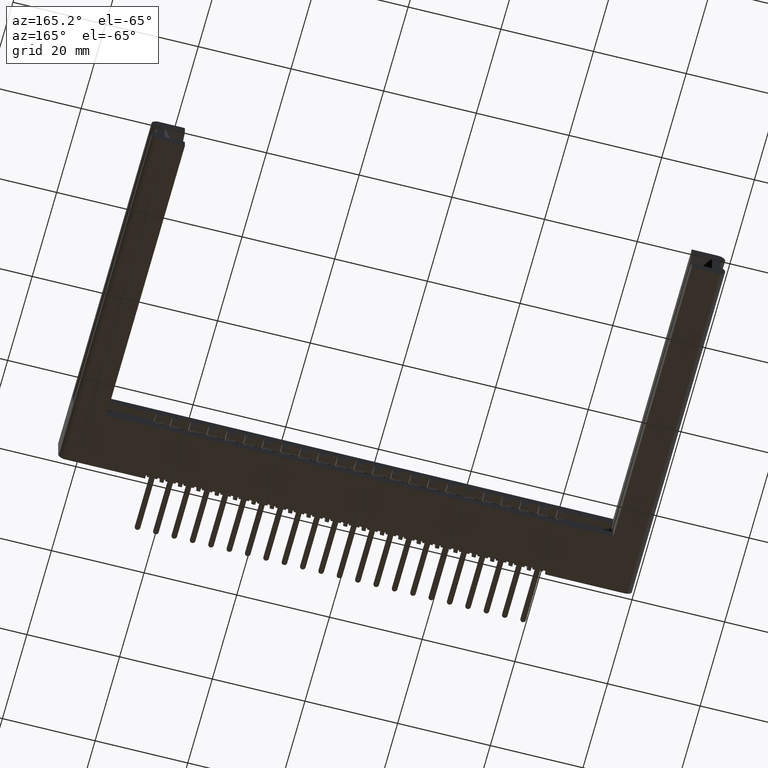
[diagram: clean part render]
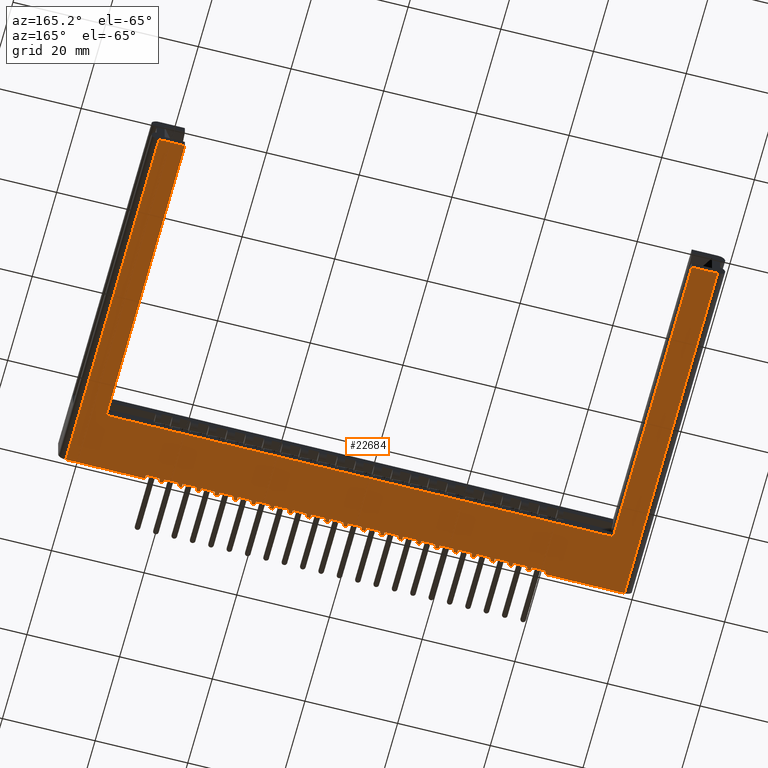
[diagram: same view with one face highlighted and labeled with its STEP entity id]
A machine part, auxiliary view. The second image highlights one B-rep face of the part: STEP entity #22684.
In plain terms, the highlighted planar face has unit normal (0, 0, 1).
Its self-contained STEP definition (entity closure, byte-faithful):
#75 = CARTESIAN_POINT ( 'NONE',  ( 2.420999999999999800, 1.506315562951245400E-017, -0.1715000000000000100 ) ) ;
#90 = CARTESIAN_POINT ( 'NONE',  ( 0.8610000000000001000, 1.506315562951245400E-017, -0.1715000000000000100 ) ) ;
#114 = CARTESIAN_POINT ( 'NONE',  ( 1.329000000000000000, 1.506315562951245400E-017, -0.1715000000000000100 ) ) ;
#148 = CARTESIAN_POINT ( 'NONE',  ( 1.361999999999999900, 0.0000000000000000000, -0.1715000000000000100 ) ) ;
#173 = LINE ( 'NONE', #12206, #19718 ) ;
#185 = EDGE_CURVE ( 'NONE', #13595, #21166, #2359, .T. ) ;
#218 = VECTOR ( 'NONE', #6679, 39.37007874015748100 ) ;
#224 = LINE ( 'NONE', #13889, #9632 ) ;
#240 = VECTOR ( 'NONE', #3568, 39.37007874015748100 ) ;
#258 = VERTEX_POINT ( 'NONE', #17348 ) ;
#348 = ORIENTED_EDGE ( 'NONE', *, *, #14944, .F. ) ;
#366 = VECTOR ( 'NONE', #16451, 39.37007874015748100 ) ;
#379 = LINE ( 'NONE', #18924, #14631 ) ;
#382 = ORIENTED_EDGE ( 'NONE', *, *, #22667, .F. ) ;
#405 = EDGE_CURVE ( 'NONE', #1496, #21568, #21520, .T. ) ;
#447 = DIRECTION ( 'NONE',  ( 1.000000000000000000, 0.0000000000000000000, 0.0000000000000000000 ) ) ;
#466 = DIRECTION ( 'NONE',  ( -1.000000000000000000, 0.0000000000000000000, 0.0000000000000000000 ) ) ;
#467 = VERTEX_POINT ( 'NONE', #19008 ) ;
#479 = CARTESIAN_POINT ( 'NONE',  ( 1.017000000000000100, 1.506315562951245400E-017, -0.1715000000000000100 ) ) ;
#533 = VERTEX_POINT ( 'NONE', #21466 ) ;
#549 = VECTOR ( 'NONE', #10288, 39.37007874015748100 ) ;
#554 = VERTEX_POINT ( 'NONE', #5812 ) ;
#566 = CARTESIAN_POINT ( 'NONE',  ( 3.824999999999999700, 0.03100000000000001700, -0.1715000000000000100 ) ) ;
#568 = EDGE_CURVE ( 'NONE', #6272, #5739, #13407, .T. ) ;
#585 = EDGE_CURVE ( 'NONE', #6930, #6272, #12846, .T. ) ;
#644 = EDGE_CURVE ( 'NONE', #13031, #1748, #1759, .T. ) ;
#722 = CARTESIAN_POINT ( 'NONE',  ( 4.811000000000000800, 0.0000000000000000000, -0.1715000000000000100 ) ) ;
#742 = CARTESIAN_POINT ( 'NONE',  ( 3.857999999999999700, 0.0000000000000000000, -0.1715000000000000100 ) ) ;
#756 = LINE ( 'NONE', #9249, #10166 ) ;
#805 = VECTOR ( 'NONE', #14106, 39.37007874015748100 ) ;
#853 = CARTESIAN_POINT ( 'NONE',  ( 3.980999999999999400, 1.506315562951245400E-017, -0.1715000000000000100 ) ) ;
#883 = EDGE_CURVE ( 'NONE', #20610, #3524, #1441, .T. ) ;
#919 = LINE ( 'NONE', #566, #5409 ) ;
#922 = DIRECTION ( 'NONE',  ( 1.000000000000000000, 0.0000000000000000000, 0.0000000000000000000 ) ) ;
#998 = DIRECTION ( 'NONE',  ( 0.0000000000000000000, 1.000000000000000000, 0.0000000000000000000 ) ) ;
#1061 = DIRECTION ( 'NONE',  ( -0.0000000000000000000, -1.000000000000000000, -0.0000000000000000000 ) ) ;
#1091 = VERTEX_POINT ( 'NONE', #13418 ) ;
#1106 = LINE ( 'NONE', #7829, #15870 ) ;
#1109 = EDGE_CURVE ( 'NONE', #6634, #18744, #20079, .T. ) ;
#1153 = CARTESIAN_POINT ( 'NONE',  ( 3.201000000000000100, 1.506315562951245400E-017, -0.1715000000000000100 ) ) ;
#1168 = VERTEX_POINT ( 'NONE', #10038 ) ;
#1178 = EDGE_CURVE ( 'NONE', #2307, #19030, #4439, .T. ) ;
#1189 = DIRECTION ( 'NONE',  ( 0.0000000000000000000, 1.000000000000000000, 0.0000000000000000000 ) ) ;
#1208 = ORIENTED_EDGE ( 'NONE', *, *, #22015, .T. ) ;
#1219 = VERTEX_POINT ( 'NONE', #8043 ) ;
#1276 = DIRECTION ( 'NONE',  ( -1.000000000000000000, -1.388134143122084800E-016, 0.0000000000000000000 ) ) ;
#1312 = ORIENTED_EDGE ( 'NONE', *, *, #22666, .F. ) ;
#1359 = CARTESIAN_POINT ( 'NONE',  ( 2.888999999999999800, 1.506315562951245400E-017, -0.1715000000000000100 ) ) ;
#1386 = EDGE_CURVE ( 'NONE', #10122, #3804, #3515, .T. ) ;
#1397 = ORIENTED_EDGE ( 'NONE', *, *, #20205, .T. ) ;
#1423 = ORIENTED_EDGE ( 'NONE', *, *, #15652, .T. ) ;
#1439 = CARTESIAN_POINT ( 'NONE',  ( 3.512999999999999900, 1.506315562951245400E-017, -0.1715000000000000100 ) ) ;
#1441 = LINE ( 'NONE', #21601, #10839 ) ;
#1460 = VECTOR ( 'NONE', #3587, 39.37007874015748100 ) ;
#1496 = VERTEX_POINT ( 'NONE', #19951 ) ;
#1533 = VERTEX_POINT ( 'NONE', #19360 ) ;
#1543 = DIRECTION ( 'NONE',  ( -1.000000000000000000, -1.388134143122084800E-016, 0.0000000000000000000 ) ) ;
#1572 = DIRECTION ( 'NONE',  ( 1.000000000000000000, 0.0000000000000000000, 0.0000000000000000000 ) ) ;
#1626 = LINE ( 'NONE', #7468, #11012 ) ;
#1691 = DIRECTION ( 'NONE',  ( 1.000000000000000000, 0.0000000000000000000, 0.0000000000000000000 ) ) ;
#1714 = ORIENTED_EDGE ( 'NONE', *, *, #15333, .F. ) ;
#1719 = ORIENTED_EDGE ( 'NONE', *, *, #17697, .T. ) ;
#1748 = VERTEX_POINT ( 'NONE', #14533 ) ;
#1754 = DIRECTION ( 'NONE',  ( -0.0000000000000000000, -1.000000000000000000, -0.0000000000000000000 ) ) ;
#1759 = LINE ( 'NONE', #20840, #15926 ) ;
#1769 = EDGE_CURVE ( 'NONE', #4725, #17536, #9638, .T. ) ;
#1837 = VECTOR ( 'NONE', #21437, 39.37007874015748100 ) ;
#1844 = VECTOR ( 'NONE', #13255, 39.37007874015748100 ) ;
#1851 = LINE ( 'NONE', #15543, #16019 ) ;
#1880 = LINE ( 'NONE', #15320, #20220 ) ;
#1893 = EDGE_CURVE ( 'NONE', #19401, #1168, #16433, .T. ) ;
#1927 = CARTESIAN_POINT ( 'NONE',  ( 1.986000000000000000, 0.0000000000000000000, -0.1715000000000000100 ) ) ;
#1954 = VERTEX_POINT ( 'NONE', #11144 ) ;
#2026 = DIRECTION ( 'NONE',  ( -0.0000000000000000000, -1.000000000000000000, -0.0000000000000000000 ) ) ;
#2110 = DIRECTION ( 'NONE',  ( -0.0000000000000000000, -1.000000000000000000, -0.0000000000000000000 ) ) ;
#2183 = ORIENTED_EDGE ( 'NONE', *, *, #2613, .T. ) ;
#2205 = LINE ( 'NONE', #4249, #16370 ) ;
#2222 = CARTESIAN_POINT ( 'NONE',  ( 1.173000000000000000, 0.03100000000000001700, -0.1715000000000000100 ) ) ;
#2260 = ORIENTED_EDGE ( 'NONE', *, *, #7127, .F. ) ;
#2262 = VERTEX_POINT ( 'NONE', #5404 ) ;
#2307 = VERTEX_POINT ( 'NONE', #4791 ) ;
#2343 = CARTESIAN_POINT ( 'NONE',  ( 3.824999999999999700, 0.03100000000000001700, -0.1715000000000000100 ) ) ;
#2359 = LINE ( 'NONE', #10364, #16521 ) ;
#2414 = DIRECTION ( 'NONE',  ( 0.0000000000000000000, 1.000000000000000000, 0.0000000000000000000 ) ) ;
#2448 = CARTESIAN_POINT ( 'NONE',  ( 2.420999999999999800, 0.03100000000000001700, -0.1715000000000000100 ) ) ;
#2449 = LINE ( 'NONE', #11499, #16028 ) ;
#2497 = CARTESIAN_POINT ( 'NONE',  ( 0.0000000000000000000, 0.0000000000000000000, -0.1715000000000000100 ) ) ;
#2560 = DIRECTION ( 'NONE',  ( -0.0000000000000000000, -1.000000000000000000, -0.0000000000000000000 ) ) ;
#2564 = VERTEX_POINT ( 'NONE', #15029 ) ;
#2573 = CARTESIAN_POINT ( 'NONE',  ( 2.922000000000000200, 0.0000000000000000000, -0.1715000000000000100 ) ) ;
#2613 = EDGE_CURVE ( 'NONE', #17896, #13290, #756, .T. ) ;
#2646 = VERTEX_POINT ( 'NONE', #5524 ) ;
#2655 = LINE ( 'NONE', #22683, #7110 ) ;
#2685 = LINE ( 'NONE', #12886, #12039 ) ;
#2700 = CARTESIAN_POINT ( 'NONE',  ( 3.702000000000000000, 0.03100000000000000000, -0.1715000000000000100 ) ) ;
#2701 = EDGE_CURVE ( 'NONE', #14785, #19603, #3434, .T. ) ;
#2703 = LINE ( 'NONE', #2448, #15159 ) ;
#2730 = CARTESIAN_POINT ( 'NONE',  ( 1.640999999999999800, 1.506315562951245400E-017, -0.1715000000000000100 ) ) ;
#2787 = CARTESIAN_POINT ( 'NONE',  ( 1.953000000000000100, 1.506315562951245400E-017, -0.1715000000000000100 ) ) ;
#2791 = CARTESIAN_POINT ( 'NONE',  ( 1.640999999999999800, 0.03100000000000001700, -0.1715000000000000100 ) ) ;
#2917 = DIRECTION ( 'NONE',  ( -1.000000000000000000, -1.388134143122084800E-016, 0.0000000000000000000 ) ) ;
#2940 = ORIENTED_EDGE ( 'NONE', *, *, #185, .T. ) ;
#2944 = VECTOR ( 'NONE', #23423, 39.37007874015748100 ) ;
#3029 = VECTOR ( 'NONE', #22809, 39.37007874015748100 ) ;
#3047 = CARTESIAN_POINT ( 'NONE',  ( 1.953000000000000100, 1.506315562951245400E-017, -0.1715000000000000100 ) ) ;
#3103 = DIRECTION ( 'NONE',  ( -0.0000000000000000000, -1.000000000000000000, -0.0000000000000000000 ) ) ;
#3135 = ORIENTED_EDGE ( 'NONE', *, *, #1178, .F. ) ;
#3187 = VERTEX_POINT ( 'NONE', #9489 ) ;
#3199 = ORIENTED_EDGE ( 'NONE', *, *, #13779, .T. ) ;
#3214 = CARTESIAN_POINT ( 'NONE',  ( 3.512999999999999900, 1.506315562951245400E-017, -0.1715000000000000100 ) ) ;
#3227 = VERTEX_POINT ( 'NONE', #8530 ) ;
#3228 = VECTOR ( 'NONE', #4610, 39.37007874015748100 ) ;
#3268 = VECTOR ( 'NONE', #11531, 39.37007874015748100 ) ;
#3291 = VERTEX_POINT ( 'NONE', #6672 ) ;
#3311 = CARTESIAN_POINT ( 'NONE',  ( 3.201000000000000100, 0.03100000000000001700, -0.1715000000000000100 ) ) ;
#3364 = DIRECTION ( 'NONE',  ( 0.0000000000000000000, 1.000000000000000000, 0.0000000000000000000 ) ) ;
#3369 = EDGE_CURVE ( 'NONE', #13838, #1748, #12409, .T. ) ;
#3418 = VERTEX_POINT ( 'NONE', #3047 ) ;
#3434 = LINE ( 'NONE', #3766, #12735 ) ;
#3437 = ORIENTED_EDGE ( 'NONE', *, *, #405, .T. ) ;
#3444 = EDGE_CURVE ( 'NONE', #3418, #21695, #16061, .T. ) ;
#3446 = CARTESIAN_POINT ( 'NONE',  ( 0.8610000000000001000, 1.506315562951245400E-017, -0.1715000000000000100 ) ) ;
#3464 = CARTESIAN_POINT ( 'NONE',  ( 3.824999999999999700, 1.506315562951245400E-017, -0.1715000000000000100 ) ) ;
#3482 = CARTESIAN_POINT ( 'NONE',  ( 2.265000000000000100, 0.03100000000000001700, -0.1715000000000000100 ) ) ;
#3515 = LINE ( 'NONE', #23495, #13361 ) ;
#3524 = VERTEX_POINT ( 'NONE', #148 ) ;
#3568 = DIRECTION ( 'NONE',  ( 1.000000000000000000, 0.0000000000000000000, 0.0000000000000000000 ) ) ;
#3587 = DIRECTION ( 'NONE',  ( -1.000000000000000000, -1.388134143122084800E-016, 0.0000000000000000000 ) ) ;
#3678 = CARTESIAN_POINT ( 'NONE',  ( 2.766000000000000000, 0.0000000000000000000, -0.1715000000000000100 ) ) ;
#3766 = CARTESIAN_POINT ( 'NONE',  ( 1.640999999999999800, 1.506315562951245400E-017, -0.1715000000000000100 ) ) ;
#3804 = VERTEX_POINT ( 'NONE', #10592 ) ;
#3854 = CARTESIAN_POINT ( 'NONE',  ( 2.733000000000000100, 0.03100000000000001700, -0.1715000000000000100 ) ) ;
#3909 = ORIENTED_EDGE ( 'NONE', *, *, #20413, .T. ) ;
#3926 = DIRECTION ( 'NONE',  ( -0.0000000000000000000, -1.000000000000000000, -0.0000000000000000000 ) ) ;
#3947 = LINE ( 'NONE', #1927, #22691 ) ;
#4053 = ORIENTED_EDGE ( 'NONE', *, *, #5254, .T. ) ;
#4072 = ORIENTED_EDGE ( 'NONE', *, *, #14500, .T. ) ;
#4123 = CARTESIAN_POINT ( 'NONE',  ( 3.545999999999999800, 0.0000000000000000000, -0.1715000000000000100 ) ) ;
#4145 = VERTEX_POINT ( 'NONE', #15093 ) ;
#4149 = VECTOR ( 'NONE', #20342, 39.37007874015748100 ) ;
#4167 = ORIENTED_EDGE ( 'NONE', *, *, #10407, .T. ) ;
#4183 = CARTESIAN_POINT ( 'NONE',  ( 1.206000000000000000, 0.03100000000000000000, -0.1715000000000000100 ) ) ;
#4249 = CARTESIAN_POINT ( 'NONE',  ( 0.0000000000000000000, 0.0000000000000000000, -0.1715000000000000100 ) ) ;
#4294 = LINE ( 'NONE', #3464, #14092 ) ;
#4329 = EDGE_CURVE ( 'NONE', #10122, #12753, #1851, .T. ) ;
#4357 = LINE ( 'NONE', #14017, #14149 ) ;
#4403 = ORIENTED_EDGE ( 'NONE', *, *, #18875, .F. ) ;
#4410 = DIRECTION ( 'NONE',  ( -1.000000000000000000, -1.388134143122084800E-016, 0.0000000000000000000 ) ) ;
#4439 = LINE ( 'NONE', #9653, #549 ) ;
#4478 = DIRECTION ( 'NONE',  ( 0.0000000000000000000, 1.000000000000000000, 0.0000000000000000000 ) ) ;
#4514 = VECTOR ( 'NONE', #14243, 39.37007874015748100 ) ;
#4522 = VECTOR ( 'NONE', #21565, 39.37007874015748100 ) ;
#4538 = EDGE_CURVE ( 'NONE', #8208, #19358, #7176, .T. ) ;
#4569 = DIRECTION ( 'NONE',  ( -0.0000000000000000000, -1.000000000000000000, -0.0000000000000000000 ) ) ;
#4584 = DIRECTION ( 'NONE',  ( -1.000000000000000000, -1.388134143122084800E-016, 0.0000000000000000000 ) ) ;
#4610 = DIRECTION ( 'NONE',  ( 0.0000000000000000000, 1.000000000000000000, 0.0000000000000000000 ) ) ;
#4630 = LINE ( 'NONE', #16441, #13831 ) ;
#4691 = CARTESIAN_POINT ( 'NONE',  ( 2.454000000000000200, 0.0000000000000000000, -0.1715000000000000100 ) ) ;
#4704 = CARTESIAN_POINT ( 'NONE',  ( 0.0000000000000000000, 0.0000000000000000000, -0.1715000000000000100 ) ) ;
#4721 = VERTEX_POINT ( 'NONE', #21906 ) ;
#4725 = VERTEX_POINT ( 'NONE', #5620 ) ;
#4788 = LINE ( 'NONE', #3482, #12867 ) ;
#4791 = CARTESIAN_POINT ( 'NONE',  ( 2.888999999999999800, 1.506315562951245400E-017, -0.1715000000000000100 ) ) ;
#4803 = CARTESIAN_POINT ( 'NONE',  ( 3.668999999999999600, 1.506315562951245400E-017, -0.1715000000000000100 ) ) ;
#4845 = DIRECTION ( 'NONE',  ( -1.000000000000000000, -1.388134143122084800E-016, 0.0000000000000000000 ) ) ;
#4848 = EDGE_CURVE ( 'NONE', #19083, #1091, #19070, .T. ) ;
#4850 = VECTOR ( 'NONE', #14087, 39.37007874015748100 ) ;
#4869 = VECTOR ( 'NONE', #3103, 39.37007874015748100 ) ;
#4876 = VECTOR ( 'NONE', #10679, 39.37007874015748100 ) ;
#4897 = EDGE_CURVE ( 'NONE', #16465, #19293, #18516, .T. ) ;
#4923 = ORIENTED_EDGE ( 'NONE', *, *, #5470, .T. ) ;
#5075 = ORIENTED_EDGE ( 'NONE', *, *, #15678, .F. ) ;
#5108 = EDGE_CURVE ( 'NONE', #17734, #17833, #18226, .T. ) ;
#5134 = CARTESIAN_POINT ( 'NONE',  ( 2.109000000000000000, 1.506315562951245400E-017, -0.1715000000000000100 ) ) ;
#5135 = CARTESIAN_POINT ( 'NONE',  ( 1.173000000000000000, 1.506315562951245400E-017, -0.1715000000000000100 ) ) ;
#5168 = ORIENTED_EDGE ( 'NONE', *, *, #10675, .T. ) ;
#5230 = ORIENTED_EDGE ( 'NONE', *, *, #6309, .T. ) ;
#5254 = EDGE_CURVE ( 'NONE', #3291, #14215, #15733, .T. ) ;
#5404 = CARTESIAN_POINT ( 'NONE',  ( 1.518000000000000000, 0.0000000000000000000, -0.1715000000000000100 ) ) ;
#5409 = VECTOR ( 'NONE', #20604, 39.37007874015748100 ) ;
#5439 = LINE ( 'NONE', #21195, #4850 ) ;
#5470 = EDGE_CURVE ( 'NONE', #18744, #1533, #21003, .T. ) ;
#5474 = CARTESIAN_POINT ( 'NONE',  ( 1.206000000000000000, 0.0000000000000000000, -0.1715000000000000100 ) ) ;
#5524 = CARTESIAN_POINT ( 'NONE',  ( 4.590500000000000500, 0.4729999999999994200, -0.1715000000000000100 ) ) ;
#5544 = VECTOR ( 'NONE', #15750, 39.37007874015748100 ) ;
#5566 = EDGE_CURVE ( 'NONE', #554, #17454, #19322, .T. ) ;
#5607 = LINE ( 'NONE', #10409, #20617 ) ;
#5616 = VECTOR ( 'NONE', #13173, 39.37007874015748100 ) ;
#5620 = CARTESIAN_POINT ( 'NONE',  ( 2.609999999999999900, 0.03100000000000000000, -0.1715000000000000100 ) ) ;
#5681 = DIRECTION ( 'NONE',  ( -1.000000000000000000, -1.388134143122084800E-016, 0.0000000000000000000 ) ) ;
#5739 = VERTEX_POINT ( 'NONE', #23016 ) ;
#5750 = CARTESIAN_POINT ( 'NONE',  ( 3.077999999999999800, 0.03100000000000000000, -0.1715000000000000100 ) ) ;
#5777 = EDGE_CURVE ( 'NONE', #3187, #18533, #14305, .T. ) ;
#5804 = DIRECTION ( 'NONE',  ( 0.0000000000000000000, 1.000000000000000000, 0.0000000000000000000 ) ) ;
#5812 = CARTESIAN_POINT ( 'NONE',  ( 3.356999999999999800, 0.03100000000000001700, -0.1715000000000000100 ) ) ;
#5831 = LINE ( 'NONE', #16927, #19187 ) ;
#5845 = CARTESIAN_POINT ( 'NONE',  ( 2.733000000000000100, 0.03100000000000001700, -0.1715000000000000100 ) ) ;
#5892 = VERTEX_POINT ( 'NONE', #7182 ) ;
#5963 = ORIENTED_EDGE ( 'NONE', *, *, #14230, .F. ) ;
#5985 = ORIENTED_EDGE ( 'NONE', *, *, #11966, .F. ) ;
#6144 = VECTOR ( 'NONE', #21544, 39.37007874015748100 ) ;
#6175 = CARTESIAN_POINT ( 'NONE',  ( 2.609999999999999900, 0.0000000000000000000, -0.1715000000000000100 ) ) ;
#6202 = DIRECTION ( 'NONE',  ( -1.000000000000000000, -1.388134143122084800E-016, 0.0000000000000000000 ) ) ;
#6204 = VERTEX_POINT ( 'NONE', #20593 ) ;
#6272 = VERTEX_POINT ( 'NONE', #15461 ) ;
#6309 = EDGE_CURVE ( 'NONE', #467, #19030, #2655, .T. ) ;
#6313 = DIRECTION ( 'NONE',  ( 1.000000000000000000, 0.0000000000000000000, 0.0000000000000000000 ) ) ;
#6352 = VERTEX_POINT ( 'NONE', #21067 ) ;
#6372 = ORIENTED_EDGE ( 'NONE', *, *, #1109, .T. ) ;
#6398 = VECTOR ( 'NONE', #8830, 39.37007874015748100 ) ;
#6414 = DIRECTION ( 'NONE',  ( 0.0000000000000000000, 1.000000000000000000, 0.0000000000000000000 ) ) ;
#6552 = EDGE_CURVE ( 'NONE', #8481, #6204, #6807, .T. ) ;
#6585 = VECTOR ( 'NONE', #8283, 39.37007874015748100 ) ;
#6625 = EDGE_CURVE ( 'NONE', #15580, #9550, #14821, .T. ) ;
#6634 = VERTEX_POINT ( 'NONE', #5135 ) ;
#6645 = ORIENTED_EDGE ( 'NONE', *, *, #8046, .T. ) ;
#6650 = LINE ( 'NONE', #20588, #7821 ) ;
#6672 = CARTESIAN_POINT ( 'NONE',  ( 0.06400000000000000100, 0.0000000000000000000, -0.1715000000000000100 ) ) ;
#6679 = DIRECTION ( 'NONE',  ( 0.0000000000000000000, 1.000000000000000000, 0.0000000000000000000 ) ) ;
#6717 = CARTESIAN_POINT ( 'NONE',  ( 2.298000000000000000, 0.0000000000000000000, -0.1715000000000000100 ) ) ;
#6807 = LINE ( 'NONE', #1439, #15934 ) ;
#6894 = EDGE_CURVE ( 'NONE', #14785, #14946, #8525, .T. ) ;
#6901 = VERTEX_POINT ( 'NONE', #7723 ) ;
#6930 = VERTEX_POINT ( 'NONE', #15141 ) ;
#6943 = LINE ( 'NONE', #722, #20241 ) ;
#6956 = ORIENTED_EDGE ( 'NONE', *, *, #22830, .F. ) ;
#7004 = CARTESIAN_POINT ( 'NONE',  ( 2.420999999999999800, 1.506315562951245400E-017, -0.1715000000000000100 ) ) ;
#7017 = LINE ( 'NONE', #90, #16142 ) ;
#7039 = ORIENTED_EDGE ( 'NONE', *, *, #7382, .F. ) ;
#7110 = VECTOR ( 'NONE', #11996, 39.37007874015748100 ) ;
#7116 = CARTESIAN_POINT ( 'NONE',  ( 4.014000000000000200, 0.03100000000000000000, -0.1715000000000000100 ) ) ;
#7125 = CARTESIAN_POINT ( 'NONE',  ( 3.234000000000000000, 0.0000000000000000000, -0.1715000000000000100 ) ) ;
#7127 = EDGE_CURVE ( 'NONE', #10868, #22483, #22020, .T. ) ;
#7176 = LINE ( 'NONE', #5134, #7763 ) ;
#7182 = CARTESIAN_POINT ( 'NONE',  ( 3.702000000000000000, 0.0000000000000000000, -0.1715000000000000100 ) ) ;
#7316 = VECTOR ( 'NONE', #12227, 39.37007874015748100 ) ;
#7364 = LINE ( 'NONE', #742, #21199 ) ;
#7382 = EDGE_CURVE ( 'NONE', #19816, #5892, #7931, .T. ) ;
#7385 = LINE ( 'NONE', #10469, #11705 ) ;
#7421 = EDGE_CURVE ( 'NONE', #15751, #17957, #15887, .T. ) ;
#7444 = CARTESIAN_POINT ( 'NONE',  ( 3.077999999999999800, 0.0000000000000000000, -0.1715000000000000100 ) ) ;
#7447 = CARTESIAN_POINT ( 'NONE',  ( 3.356999999999999800, 1.506315562951245400E-017, -0.1715000000000000100 ) ) ;
#7468 = CARTESIAN_POINT ( 'NONE',  ( 0.0000000000000000000, 0.0000000000000000000, -0.1715000000000000100 ) ) ;
#7627 = ORIENTED_EDGE ( 'NONE', *, *, #21318, .F. ) ;
#7689 = VECTOR ( 'NONE', #21385, 39.37007874015748100 ) ;
#7701 = CARTESIAN_POINT ( 'NONE',  ( 2.141999999999999900, 0.0000000000000000000, -0.1715000000000000100 ) ) ;
#7723 = CARTESIAN_POINT ( 'NONE',  ( 3.668999999999999600, 0.03100000000000001700, -0.1715000000000000100 ) ) ;
#7728 = LINE ( 'NONE', #5474, #21558 ) ;
#7737 = EDGE_CURVE ( 'NONE', #19079, #533, #18673, .T. ) ;
#7738 = ORIENTED_EDGE ( 'NONE', *, *, #1893, .F. ) ;
#7747 = CARTESIAN_POINT ( 'NONE',  ( 1.485000000000000100, 0.03100000000000001700, -0.1715000000000000100 ) ) ;
#7761 = ORIENTED_EDGE ( 'NONE', *, *, #19848, .T. ) ;
#7763 = VECTOR ( 'NONE', #16078, 39.37007874015748100 ) ;
#7821 = VECTOR ( 'NONE', #466, 39.37007874015748100 ) ;
#7829 = CARTESIAN_POINT ( 'NONE',  ( 1.050000000000000000, 0.0000000000000000000, -0.1715000000000000100 ) ) ;
#7832 = ORIENTED_EDGE ( 'NONE', *, *, #13575, .T. ) ;
#7863 = LINE ( 'NONE', #16530, #12746 ) ;
#7886 = CARTESIAN_POINT ( 'NONE',  ( 0.2844999999999999200, 3.000000000000000400, -0.1715000000000000100 ) ) ;
#7891 = LINE ( 'NONE', #21287, #9628 ) ;
#7931 = LINE ( 'NONE', #10928, #16463 ) ;
#7966 = CARTESIAN_POINT ( 'NONE',  ( 0.0000000000000000000, 0.0000000000000000000, -0.1715000000000000100 ) ) ;
#8043 = CARTESIAN_POINT ( 'NONE',  ( 4.136999999999999600, 1.506315562951245400E-017, -0.1715000000000000100 ) ) ;
#8046 = EDGE_CURVE ( 'NONE', #10763, #16805, #7017, .T. ) ;
#8094 = ORIENTED_EDGE ( 'NONE', *, *, #19757, .T. ) ;
#8174 = CARTESIAN_POINT ( 'NONE',  ( 3.857999999999999700, 0.03100000000000000000, -0.1715000000000000100 ) ) ;
#8176 = ORIENTED_EDGE ( 'NONE', *, *, #13886, .T. ) ;
#8193 = CARTESIAN_POINT ( 'NONE',  ( 4.811000000000000800, 3.000000000000000400, -0.1715000000000000100 ) ) ;
#8208 = VERTEX_POINT ( 'NONE', #17130 ) ;
#8269 = ORIENTED_EDGE ( 'NONE', *, *, #15447, .T. ) ;
#8283 = DIRECTION ( 'NONE',  ( 1.000000000000000000, 0.0000000000000000000, 0.0000000000000000000 ) ) ;
#8387 = DIRECTION ( 'NONE',  ( -0.0000000000000000000, -1.000000000000000000, -0.0000000000000000000 ) ) ;
#8412 = VERTEX_POINT ( 'NONE', #15854 ) ;
#8430 = CARTESIAN_POINT ( 'NONE',  ( 2.298000000000000000, 0.03100000000000000000, -0.1715000000000000100 ) ) ;
#8444 = CARTESIAN_POINT ( 'NONE',  ( 0.0000000000000000000, 0.0000000000000000000, -0.1715000000000000100 ) ) ;
#8480 = ORIENTED_EDGE ( 'NONE', *, *, #19850, .T. ) ;
#8481 = VERTEX_POINT ( 'NONE', #3214 ) ;
#8503 = VERTEX_POINT ( 'NONE', #7004 ) ;
#8525 = LINE ( 'NONE', #18580, #4149 ) ;
#8530 = CARTESIAN_POINT ( 'NONE',  ( 4.811000000000000800, 0.0000000000000000000, -0.1715000000000000100 ) ) ;
#8567 = CARTESIAN_POINT ( 'NONE',  ( 1.673999999999999900, 0.03100000000000000000, -0.1715000000000000100 ) ) ;
#8572 = DIRECTION ( 'NONE',  ( -0.0000000000000000000, -1.000000000000000000, -0.0000000000000000000 ) ) ;
#8585 = ORIENTED_EDGE ( 'NONE', *, *, #11686, .T. ) ;
#8588 = CARTESIAN_POINT ( 'NONE',  ( 3.824999999999999700, 1.506315562951245400E-017, -0.1715000000000000100 ) ) ;
#8666 = DIRECTION ( 'NONE',  ( 1.000000000000000000, 0.0000000000000000000, 0.0000000000000000000 ) ) ;
#8727 = CARTESIAN_POINT ( 'NONE',  ( 4.590500000000000500, 3.000000000000000400, -0.1715000000000000100 ) ) ;
#8830 = DIRECTION ( 'NONE',  ( -1.000000000000000000, 0.0000000000000000000, 0.0000000000000000000 ) ) ;
#8844 = DIRECTION ( 'NONE',  ( 1.000000000000000000, 0.0000000000000000000, 0.0000000000000000000 ) ) ;
#8847 = VERTEX_POINT ( 'NONE', #2343 ) ;
#8895 = CARTESIAN_POINT ( 'NONE',  ( 3.668999999999999600, 0.03100000000000001700, -0.1715000000000000100 ) ) ;
#8897 = VERTEX_POINT ( 'NONE', #13702 ) ;
#8977 = EDGE_CURVE ( 'NONE', #10763, #6352, #9311, .T. ) ;
#9034 = CARTESIAN_POINT ( 'NONE',  ( 2.766000000000000000, 0.03100000000000000000, -0.1715000000000000100 ) ) ;
#9064 = VECTOR ( 'NONE', #8572, 39.37007874015748100 ) ;
#9098 = CARTESIAN_POINT ( 'NONE',  ( 0.7379999999999999900, 0.03100000000000000000, -0.1715000000000000100 ) ) ;
#9158 = CARTESIAN_POINT ( 'NONE',  ( 3.201000000000000100, 0.03100000000000001700, -0.1715000000000000100 ) ) ;
#9195 = VECTOR ( 'NONE', #19692, 39.37007874015748100 ) ;
#9213 = CARTESIAN_POINT ( 'NONE',  ( 1.017000000000000100, 0.03100000000000001700, -0.1715000000000000100 ) ) ;
#9225 = VERTEX_POINT ( 'NONE', #9158 ) ;
#9226 = VECTOR ( 'NONE', #22745, 39.37007874015748100 ) ;
#9234 = LINE ( 'NONE', #14329, #22986 ) ;
#9241 = CARTESIAN_POINT ( 'NONE',  ( 3.857999999999999700, 0.0000000000000000000, -0.1715000000000000100 ) ) ;
#9249 = CARTESIAN_POINT ( 'NONE',  ( 3.077999999999999800, 0.0000000000000000000, -0.1715000000000000100 ) ) ;
#9252 = VECTOR ( 'NONE', #4478, 39.37007874015748100 ) ;
#9264 = EDGE_CURVE ( 'NONE', #18670, #15429, #7863, .T. ) ;
#9269 = ORIENTED_EDGE ( 'NONE', *, *, #22227, .T. ) ;
#9272 = ORIENTED_EDGE ( 'NONE', *, *, #22687, .T. ) ;
#9311 = LINE ( 'NONE', #15754, #14162 ) ;
#9327 = ORIENTED_EDGE ( 'NONE', *, *, #17269, .T. ) ;
#9458 = LINE ( 'NONE', #3311, #4522 ) ;
#9489 = CARTESIAN_POINT ( 'NONE',  ( 2.577000000000000000, 1.506315562951245400E-017, -0.1715000000000000100 ) ) ;
#9550 = VERTEX_POINT ( 'NONE', #8174 ) ;
#9599 = ORIENTED_EDGE ( 'NONE', *, *, #19143, .F. ) ;
#9628 = VECTOR ( 'NONE', #10543, 39.37007874015748100 ) ;
#9632 = VECTOR ( 'NONE', #22764, 39.37007874015748100 ) ;
#9638 = LINE ( 'NONE', #14126, #805 ) ;
#9648 = CARTESIAN_POINT ( 'NONE',  ( 1.329000000000000000, 0.03100000000000001700, -0.1715000000000000100 ) ) ;
#9653 = CARTESIAN_POINT ( 'NONE',  ( 0.0000000000000000000, 0.0000000000000000000, -0.1715000000000000100 ) ) ;
#9756 = EDGE_CURVE ( 'NONE', #2564, #2262, #2205, .T. ) ;
#9762 = VECTOR ( 'NONE', #20777, 39.37007874015748100 ) ;
#9879 = CARTESIAN_POINT ( 'NONE',  ( 4.014000000000000200, 0.0000000000000000000, -0.1715000000000000100 ) ) ;
#9894 = LINE ( 'NONE', #4704, #23599 ) ;
#9940 = CARTESIAN_POINT ( 'NONE',  ( 1.953000000000000100, 0.03100000000000001700, -0.1715000000000000100 ) ) ;
#9993 = ORIENTED_EDGE ( 'NONE', *, *, #23660, .T. ) ;
#10005 = VERTEX_POINT ( 'NONE', #19526 ) ;
#10038 = CARTESIAN_POINT ( 'NONE',  ( 3.390000000000000100, 0.0000000000000000000, -0.1715000000000000100 ) ) ;
#10049 = ORIENTED_EDGE ( 'NONE', *, *, #5108, .F. ) ;
#10052 = ORIENTED_EDGE ( 'NONE', *, *, #7421, .T. ) ;
#10058 = CARTESIAN_POINT ( 'NONE',  ( 0.0000000000000000000, 0.0000000000000000000, -0.1715000000000000100 ) ) ;
#10122 = VERTEX_POINT ( 'NONE', #12730 ) ;
#10166 = VECTOR ( 'NONE', #10628, 39.37007874015748100 ) ;
#10199 = LINE ( 'NONE', #4803, #218 ) ;
#10229 = ORIENTED_EDGE ( 'NONE', *, *, #19947, .T. ) ;
#10273 = CARTESIAN_POINT ( 'NONE',  ( 3.545999999999999800, 0.03100000000000000000, -0.1715000000000000100 ) ) ;
#10277 = CARTESIAN_POINT ( 'NONE',  ( 2.577000000000000000, 0.03100000000000001700, -0.1715000000000000100 ) ) ;
#10286 = LINE ( 'NONE', #14441, #18747 ) ;
#10288 = DIRECTION ( 'NONE',  ( 1.000000000000000000, 0.0000000000000000000, 0.0000000000000000000 ) ) ;
#10355 = DIRECTION ( 'NONE',  ( 1.000000000000000000, 0.0000000000000000000, 0.0000000000000000000 ) ) ;
#10364 = CARTESIAN_POINT ( 'NONE',  ( 2.141999999999999900, 0.0000000000000000000, -0.1715000000000000100 ) ) ;
#10407 = EDGE_CURVE ( 'NONE', #19603, #4721, #1880, .T. ) ;
#10409 = CARTESIAN_POINT ( 'NONE',  ( 1.673999999999999900, 0.0000000000000000000, -0.1715000000000000100 ) ) ;
#10469 = CARTESIAN_POINT ( 'NONE',  ( 1.485000000000000100, 1.506315562951245400E-017, -0.1715000000000000100 ) ) ;
#10543 = DIRECTION ( 'NONE',  ( -1.000000000000000000, -1.388134143122084800E-016, 0.0000000000000000000 ) ) ;
#10566 = ORIENTED_EDGE ( 'NONE', *, *, #2701, .T. ) ;
#10592 = CARTESIAN_POINT ( 'NONE',  ( 1.829999999999999800, 0.0000000000000000000, -0.1715000000000000100 ) ) ;
#10600 = ORIENTED_EDGE ( 'NONE', *, *, #12466, .T. ) ;
#10628 = DIRECTION ( 'NONE',  ( -0.0000000000000000000, -1.000000000000000000, -0.0000000000000000000 ) ) ;
#10675 = EDGE_CURVE ( 'NONE', #17454, #19293, #15207, .T. ) ;
#10679 = DIRECTION ( 'NONE',  ( -1.000000000000000000, -1.388134143122084800E-016, 0.0000000000000000000 ) ) ;
#10689 = CARTESIAN_POINT ( 'NONE',  ( 4.875000000000000900, 3.000000000000000400, -0.1715000000000000100 ) ) ;
#10695 = CARTESIAN_POINT ( 'NONE',  ( 0.0000000000000000000, 0.0000000000000000000, -0.1715000000000000100 ) ) ;
#10763 = VERTEX_POINT ( 'NONE', #3446 ) ;
#10772 = ORIENTED_EDGE ( 'NONE', *, *, #22891, .F. ) ;
#10813 = EDGE_CURVE ( 'NONE', #6930, #16905, #11229, .T. ) ;
#10839 = VECTOR ( 'NONE', #22355, 39.37007874015748100 ) ;
#10868 = VERTEX_POINT ( 'NONE', #23662 ) ;
#10872 = VERTEX_POINT ( 'NONE', #11184 ) ;
#10897 = VECTOR ( 'NONE', #16721, 39.37007874015748100 ) ;
#10906 = EDGE_CURVE ( 'NONE', #4145, #10872, #3947, .T. ) ;
#10928 = CARTESIAN_POINT ( 'NONE',  ( 0.0000000000000000000, 0.0000000000000000000, -0.1715000000000000100 ) ) ;
#10944 = VERTEX_POINT ( 'NONE', #5845 ) ;
#10963 = VECTOR ( 'NONE', #15519, 39.37007874015748100 ) ;
#11012 = VECTOR ( 'NONE', #11171, 39.37007874015748100 ) ;
#11061 = LINE ( 'NONE', #1359, #6144 ) ;
#11067 = ORIENTED_EDGE ( 'NONE', *, *, #5777, .T. ) ;
#11106 = CARTESIAN_POINT ( 'NONE',  ( 1.173000000000000000, 0.03100000000000001700, -0.1715000000000000100 ) ) ;
#11114 = VERTEX_POINT ( 'NONE', #8193 ) ;
#11144 = CARTESIAN_POINT ( 'NONE',  ( 2.888999999999999800, 0.03100000000000001700, -0.1715000000000000100 ) ) ;
#11171 = DIRECTION ( 'NONE',  ( 1.000000000000000000, 0.0000000000000000000, 0.0000000000000000000 ) ) ;
#11184 = CARTESIAN_POINT ( 'NONE',  ( 1.986000000000000000, 0.0000000000000000000, -0.1715000000000000100 ) ) ;
#11190 = EDGE_CURVE ( 'NONE', #18533, #8897, #21852, .T. ) ;
#11225 = EDGE_CURVE ( 'NONE', #3291, #15429, #14046, .T. ) ;
#11229 = LINE ( 'NONE', #12860, #16023 ) ;
#11270 = VECTOR ( 'NONE', #15551, 39.37007874015748100 ) ;
#11353 = CARTESIAN_POINT ( 'NONE',  ( 1.518000000000000000, 0.0000000000000000000, -0.1715000000000000100 ) ) ;
#11415 = CARTESIAN_POINT ( 'NONE',  ( 1.796999999999999900, 0.03100000000000001700, -0.1715000000000000100 ) ) ;
#11432 = CARTESIAN_POINT ( 'NONE',  ( 3.390000000000000100, 0.0000000000000000000, -0.1715000000000000100 ) ) ;
#11434 = ORIENTED_EDGE ( 'NONE', *, *, #7737, .T. ) ;
#11455 = CARTESIAN_POINT ( 'NONE',  ( 0.8610000000000001000, 0.03100000000000001700, -0.1715000000000000100 ) ) ;
#11499 = CARTESIAN_POINT ( 'NONE',  ( 4.590500000000000500, 3.000000000000000400, -0.1715000000000000100 ) ) ;
#11531 = DIRECTION ( 'NONE',  ( -0.0000000000000000000, -1.000000000000000000, -0.0000000000000000000 ) ) ;
#11633 = VECTOR ( 'NONE', #8844, 39.37007874015748100 ) ;
#11686 = EDGE_CURVE ( 'NONE', #6204, #17187, #21194, .T. ) ;
#11704 = ORIENTED_EDGE ( 'NONE', *, *, #16582, .T. ) ;
#11705 = VECTOR ( 'NONE', #22997, 39.37007874015748100 ) ;
#11761 = EDGE_CURVE ( 'NONE', #16412, #14946, #5607, .T. ) ;
#11766 = CARTESIAN_POINT ( 'NONE',  ( 1.050000000000000000, 0.0000000000000000000, -0.1715000000000000100 ) ) ;
#11793 = LINE ( 'NONE', #11432, #1844 ) ;
#11849 = LINE ( 'NONE', #20844, #11270 ) ;
#11873 = ORIENTED_EDGE ( 'NONE', *, *, #11225, .F. ) ;
#11902 = DIRECTION ( 'NONE',  ( -1.000000000000000000, -1.388134143122084800E-016, 0.0000000000000000000 ) ) ;
#11904 = CARTESIAN_POINT ( 'NONE',  ( 0.06400000000000125000, 2.999999999999999600, -0.1715000000000000100 ) ) ;
#11915 = CARTESIAN_POINT ( 'NONE',  ( 2.733000000000000100, 1.506315562951245400E-017, -0.1715000000000000100 ) ) ;
#11960 = ORIENTED_EDGE ( 'NONE', *, *, #12387, .T. ) ;
#11966 = EDGE_CURVE ( 'NONE', #15751, #3524, #19782, .T. ) ;
#11996 = DIRECTION ( 'NONE',  ( -0.0000000000000000000, -1.000000000000000000, -0.0000000000000000000 ) ) ;
#12039 = VECTOR ( 'NONE', #14691, 39.37007874015748100 ) ;
#12133 = DIRECTION ( 'NONE',  ( 1.000000000000000000, 0.0000000000000000000, 0.0000000000000000000 ) ) ;
#12150 = ORIENTED_EDGE ( 'NONE', *, *, #14861, .T. ) ;
#12151 = EDGE_CURVE ( 'NONE', #1533, #16905, #1106, .T. ) ;
#12195 = CARTESIAN_POINT ( 'NONE',  ( 2.733000000000000100, 1.506315562951245400E-017, -0.1715000000000000100 ) ) ;
#12206 = CARTESIAN_POINT ( 'NONE',  ( 4.136999999999999600, 1.506315562951245400E-017, -0.1715000000000000100 ) ) ;
#12222 = CARTESIAN_POINT ( 'NONE',  ( 0.0000000000000000000, 0.0000000000000000000, -0.1715000000000000100 ) ) ;
#12227 = DIRECTION ( 'NONE',  ( 1.000000000000000000, 0.0000000000000000000, 0.0000000000000000000 ) ) ;
#12239 = ORIENTED_EDGE ( 'NONE', *, *, #4329, .T. ) ;
#12368 = CARTESIAN_POINT ( 'NONE',  ( 0.0000000000000000000, 0.0000000000000000000, -0.1715000000000000100 ) ) ;
#12387 = EDGE_CURVE ( 'NONE', #19816, #6901, #10199, .T. ) ;
#12394 = CARTESIAN_POINT ( 'NONE',  ( 3.044999999999999900, 0.03100000000000001700, -0.1715000000000000100 ) ) ;
#12409 = LINE ( 'NONE', #3678, #21909 ) ;
#12466 = EDGE_CURVE ( 'NONE', #19358, #4145, #7891, .T. ) ;
#12472 = CARTESIAN_POINT ( 'NONE',  ( 3.980999999999999400, 0.03100000000000001700, -0.1715000000000000100 ) ) ;
#12480 = DIRECTION ( 'NONE',  ( -0.0000000000000000000, -1.000000000000000000, -0.0000000000000000000 ) ) ;
#12499 = LINE ( 'NONE', #9940, #21444 ) ;
#12513 = CARTESIAN_POINT ( 'NONE',  ( 1.673999999999999900, 0.0000000000000000000, -0.1715000000000000100 ) ) ;
#12517 = EDGE_CURVE ( 'NONE', #3187, #17536, #16421, .T. ) ;
#12555 = ORIENTED_EDGE ( 'NONE', *, *, #6894, .F. ) ;
#12571 = ORIENTED_EDGE ( 'NONE', *, *, #4848, .T. ) ;
#12730 = CARTESIAN_POINT ( 'NONE',  ( 1.796999999999999900, 1.506315562951245400E-017, -0.1715000000000000100 ) ) ;
#12735 = VECTOR ( 'NONE', #1189, 39.37007874015748100 ) ;
#12746 = VECTOR ( 'NONE', #1754, 39.37007874015748100 ) ;
#12753 = VERTEX_POINT ( 'NONE', #11415 ) ;
#12760 = DIRECTION ( 'NONE',  ( 1.000000000000000000, 0.0000000000000000000, 0.0000000000000000000 ) ) ;
#12761 = CARTESIAN_POINT ( 'NONE',  ( 0.0000000000000000000, 0.0000000000000000000, -0.1715000000000000100 ) ) ;
#12806 = EDGE_CURVE ( 'NONE', #18454, #8412, #5831, .T. ) ;
#12846 = LINE ( 'NONE', #479, #2944 ) ;
#12860 = CARTESIAN_POINT ( 'NONE',  ( 0.0000000000000000000, 0.0000000000000000000, -0.1715000000000000100 ) ) ;
#12867 = VECTOR ( 'NONE', #1543, 39.37007874015748100 ) ;
#12886 = CARTESIAN_POINT ( 'NONE',  ( 3.702000000000000000, 0.0000000000000000000, -0.1715000000000000100 ) ) ;
#13031 = VERTEX_POINT ( 'NONE', #12195 ) ;
#13099 = CARTESIAN_POINT ( 'NONE',  ( 0.7379999999999999900, 0.0000000000000000000, -0.1715000000000000100 ) ) ;
#13173 = DIRECTION ( 'NONE',  ( 0.0000000000000000000, 1.000000000000000000, 0.0000000000000000000 ) ) ;
#13223 = VECTOR ( 'NONE', #5804, 39.37007874015748100 ) ;
#13255 = DIRECTION ( 'NONE',  ( -0.0000000000000000000, -1.000000000000000000, -0.0000000000000000000 ) ) ;
#13274 = EDGE_CURVE ( 'NONE', #20526, #3804, #4630, .T. ) ;
#13290 = VERTEX_POINT ( 'NONE', #7444 ) ;
#13312 = DIRECTION ( 'NONE',  ( 0.0000000000000000000, -1.000000000000000000, 0.0000000000000000000 ) ) ;
#13357 = CARTESIAN_POINT ( 'NONE',  ( 1.173000000000000000, 1.506315562951245400E-017, -0.1715000000000000100 ) ) ;
#13361 = VECTOR ( 'NONE', #23447, 39.37007874015748100 ) ;
#13387 = DIRECTION ( 'NONE',  ( 0.0000000000000000000, 1.000000000000000000, 0.0000000000000000000 ) ) ;
#13407 = LINE ( 'NONE', #9213, #1460 ) ;
#13418 = CARTESIAN_POINT ( 'NONE',  ( 3.545999999999999800, 0.0000000000000000000, -0.1715000000000000100 ) ) ;
#13575 = EDGE_CURVE ( 'NONE', #1954, #13838, #11849, .T. ) ;
#13582 = EDGE_CURVE ( 'NONE', #11114, #3227, #6943, .T. ) ;
#13589 = DIRECTION ( 'NONE',  ( 1.000000000000000000, 0.0000000000000000000, 0.0000000000000000000 ) ) ;
#13595 = VERTEX_POINT ( 'NONE', #20925 ) ;
#13626 = VERTEX_POINT ( 'NONE', #2700 ) ;
#13630 = ORIENTED_EDGE ( 'NONE', *, *, #1386, .F. ) ;
#13635 = CARTESIAN_POINT ( 'NONE',  ( 1.796999999999999900, 0.03100000000000001700, -0.1715000000000000100 ) ) ;
#13702 = CARTESIAN_POINT ( 'NONE',  ( 2.454000000000000200, 0.03100000000000000000, -0.1715000000000000100 ) ) ;
#13703 = VECTOR ( 'NONE', #8387, 39.37007874015748100 ) ;
#13779 = EDGE_CURVE ( 'NONE', #8897, #14783, #15785, .T. ) ;
#13804 = DIRECTION ( 'NONE',  ( 0.0000000000000000000, 1.000000000000000000, 0.0000000000000000000 ) ) ;
#13831 = VECTOR ( 'NONE', #14638, 39.37007874015748100 ) ;
#13838 = VERTEX_POINT ( 'NONE', #9034 ) ;
#13886 = EDGE_CURVE ( 'NONE', #17734, #8847, #4294, .T. ) ;
#13889 = CARTESIAN_POINT ( 'NONE',  ( 1.485000000000000100, 0.03100000000000001700, -0.1715000000000000100 ) ) ;
#13941 = PLANE ( 'NONE',  #16253 ) ;
#13943 = CARTESIAN_POINT ( 'NONE',  ( 1.329000000000000000, 1.506315562951245400E-017, -0.1715000000000000100 ) ) ;
#14017 = CARTESIAN_POINT ( 'NONE',  ( 0.8610000000000001000, 0.03100000000000001700, -0.1715000000000000100 ) ) ;
#14035 = LINE ( 'NONE', #8895, #9195 ) ;
#14046 = LINE ( 'NONE', #10695, #1837 ) ;
#14069 = LINE ( 'NONE', #853, #9226 ) ;
#14087 = DIRECTION ( 'NONE',  ( -1.000000000000000000, -1.920455531574183000E-015, 0.0000000000000000000 ) ) ;
#14092 = VECTOR ( 'NONE', #23455, 39.37007874015748100 ) ;
#14106 = DIRECTION ( 'NONE',  ( -0.0000000000000000000, -1.000000000000000000, -0.0000000000000000000 ) ) ;
#14118 = ORIENTED_EDGE ( 'NONE', *, *, #15200, .T. ) ;
#14126 = CARTESIAN_POINT ( 'NONE',  ( 2.609999999999999900, 0.0000000000000000000, -0.1715000000000000100 ) ) ;
#14149 = VECTOR ( 'NONE', #2917, 39.37007874015748100 ) ;
#14162 = VECTOR ( 'NONE', #12133, 39.37007874015748100 ) ;
#14168 = ORIENTED_EDGE ( 'NONE', *, *, #12151, .T. ) ;
#14215 = VERTEX_POINT ( 'NONE', #11904 ) ;
#14230 = EDGE_CURVE ( 'NONE', #8481, #1091, #20483, .T. ) ;
#14243 = DIRECTION ( 'NONE',  ( 0.0000000000000000000, 1.000000000000000000, 0.0000000000000000000 ) ) ;
#14287 = EDGE_CURVE ( 'NONE', #10005, #15580, #14069, .T. ) ;
#14305 = LINE ( 'NONE', #16021, #4514 ) ;
#14323 = VECTOR ( 'NONE', #15140, 39.37007874015748100 ) ;
#14329 = CARTESIAN_POINT ( 'NONE',  ( 0.0000000000000000000, 0.0000000000000000000, -0.1715000000000000100 ) ) ;
#14441 = CARTESIAN_POINT ( 'NONE',  ( 3.356999999999999800, 1.506315562951245400E-017, -0.1715000000000000100 ) ) ;
#14461 = ORIENTED_EDGE ( 'NONE', *, *, #1769, .T. ) ;
#14485 = ORIENTED_EDGE ( 'NONE', *, *, #13274, .T. ) ;
#14500 = EDGE_CURVE ( 'NONE', #10944, #4725, #14668, .T. ) ;
#14533 = CARTESIAN_POINT ( 'NONE',  ( 2.766000000000000000, 0.0000000000000000000, -0.1715000000000000100 ) ) ;
#14585 = ORIENTED_EDGE ( 'NONE', *, *, #15481, .T. ) ;
#14627 = ORIENTED_EDGE ( 'NONE', *, *, #10813, .F. ) ;
#14631 = VECTOR ( 'NONE', #13589, 39.37007874015748100 ) ;
#14638 = DIRECTION ( 'NONE',  ( -0.0000000000000000000, -1.000000000000000000, -0.0000000000000000000 ) ) ;
#14668 = LINE ( 'NONE', #3854, #18867 ) ;
#14691 = DIRECTION ( 'NONE',  ( -0.0000000000000000000, -1.000000000000000000, -0.0000000000000000000 ) ) ;
#14721 = ORIENTED_EDGE ( 'NONE', *, *, #644, .F. ) ;
#14724 = ORIENTED_EDGE ( 'NONE', *, *, #13582, .T. ) ;
#14745 = LINE ( 'NONE', #12761, #19473 ) ;
#14783 = VERTEX_POINT ( 'NONE', #4691 ) ;
#14785 = VERTEX_POINT ( 'NONE', #2730 ) ;
#14821 = LINE ( 'NONE', #12472, #19552 ) ;
#14861 = EDGE_CURVE ( 'NONE', #17127, #467, #20488, .T. ) ;
#14932 = EDGE_CURVE ( 'NONE', #17957, #21231, #18842, .T. ) ;
#14944 = EDGE_CURVE ( 'NONE', #3418, #10872, #9234, .T. ) ;
#14946 = VERTEX_POINT ( 'NONE', #12513 ) ;
#15029 = CARTESIAN_POINT ( 'NONE',  ( 1.485000000000000100, 1.506315562951245400E-017, -0.1715000000000000100 ) ) ;
#15093 = CARTESIAN_POINT ( 'NONE',  ( 1.986000000000000000, 0.03100000000000000000, -0.1715000000000000100 ) ) ;
#15140 = DIRECTION ( 'NONE',  ( -0.0000000000000000000, -1.000000000000000000, -0.0000000000000000000 ) ) ;
#15141 = CARTESIAN_POINT ( 'NONE',  ( 1.017000000000000100, 1.506315562951245400E-017, -0.1715000000000000100 ) ) ;
#15146 = LINE ( 'NONE', #75, #10897 ) ;
#15159 = VECTOR ( 'NONE', #4410, 39.37007874015748100 ) ;
#15175 = ORIENTED_EDGE ( 'NONE', *, *, #5566, .T. ) ;
#15198 = VERTEX_POINT ( 'NONE', #16737 ) ;
#15200 = EDGE_CURVE ( 'NONE', #18170, #17127, #18002, .T. ) ;
#15207 = LINE ( 'NONE', #23144, #4869 ) ;
#15269 = DIRECTION ( 'NONE',  ( 1.000000000000000000, 0.0000000000000000000, 0.0000000000000000000 ) ) ;
#15293 = ORIENTED_EDGE ( 'NONE', *, *, #18364, .T. ) ;
#15320 = CARTESIAN_POINT ( 'NONE',  ( 1.640999999999999800, 0.03100000000000001700, -0.1715000000000000100 ) ) ;
#15333 = EDGE_CURVE ( 'NONE', #8503, #14783, #379, .T. ) ;
#15429 = VERTEX_POINT ( 'NONE', #13099 ) ;
#15447 = EDGE_CURVE ( 'NONE', #4721, #2262, #21862, .T. ) ;
#15461 = CARTESIAN_POINT ( 'NONE',  ( 1.017000000000000100, 0.03100000000000001700, -0.1715000000000000100 ) ) ;
#15481 = EDGE_CURVE ( 'NONE', #17187, #1168, #11793, .T. ) ;
#15498 = VECTOR ( 'NONE', #2414, 39.37007874015748100 ) ;
#15519 = DIRECTION ( 'NONE',  ( 1.000000000000000000, 0.0000000000000000000, 0.0000000000000000000 ) ) ;
#15523 = DIRECTION ( 'NONE',  ( -0.0000000000000000000, -1.000000000000000000, -0.0000000000000000000 ) ) ;
#15543 = CARTESIAN_POINT ( 'NONE',  ( 1.796999999999999900, 1.506315562951245400E-017, -0.1715000000000000100 ) ) ;
#15551 = DIRECTION ( 'NONE',  ( -1.000000000000000000, -1.388134143122084800E-016, 0.0000000000000000000 ) ) ;
#15580 = VERTEX_POINT ( 'NONE', #17100 ) ;
#15615 = CARTESIAN_POINT ( 'NONE',  ( 4.014000000000000200, 0.0000000000000000000, -0.1715000000000000100 ) ) ;
#15652 = EDGE_CURVE ( 'NONE', #12753, #16412, #21588, .T. ) ;
#15667 = CARTESIAN_POINT ( 'NONE',  ( 0.2844999999999999200, 0.4729999999999994200, -0.1715000000000000100 ) ) ;
#15678 = EDGE_CURVE ( 'NONE', #18454, #533, #16285, .T. ) ;
#15683 = EDGE_CURVE ( 'NONE', #16465, #9225, #21016, .T. ) ;
#15728 = CARTESIAN_POINT ( 'NONE',  ( 3.044999999999999900, 1.506315562951245400E-017, -0.1715000000000000100 ) ) ;
#15733 = LINE ( 'NONE', #18171, #366 ) ;
#15750 = DIRECTION ( 'NONE',  ( 1.000000000000000000, 0.0000000000000000000, 0.0000000000000000000 ) ) ;
#15751 = VERTEX_POINT ( 'NONE', #13943 ) ;
#15754 = CARTESIAN_POINT ( 'NONE',  ( 0.0000000000000000000, 0.0000000000000000000, -0.1715000000000000100 ) ) ;
#15760 = ORIENTED_EDGE ( 'NONE', *, *, #568, .T. ) ;
#15766 = VECTOR ( 'NONE', #4845, 39.37007874015748100 ) ;
#15785 = LINE ( 'NONE', #16087, #19957 ) ;
#15854 = CARTESIAN_POINT ( 'NONE',  ( 2.265000000000000100, 0.03100000000000001700, -0.1715000000000000100 ) ) ;
#15870 = VECTOR ( 'NONE', #2110, 39.37007874015748100 ) ;
#15887 = LINE ( 'NONE', #114, #20613 ) ;
#15926 = VECTOR ( 'NONE', #21416, 39.37007874015748100 ) ;
#15934 = VECTOR ( 'NONE', #3364, 39.37007874015748100 ) ;
#15968 = ORIENTED_EDGE ( 'NONE', *, *, #21345, .T. ) ;
#15983 = ORIENTED_EDGE ( 'NONE', *, *, #10906, .T. ) ;
#16019 = VECTOR ( 'NONE', #13804, 39.37007874015748100 ) ;
#16021 = CARTESIAN_POINT ( 'NONE',  ( 2.577000000000000000, 1.506315562951245400E-017, -0.1715000000000000100 ) ) ;
#16023 = VECTOR ( 'NONE', #1691, 39.37007874015748100 ) ;
#16028 = VECTOR ( 'NONE', #13312, 39.37007874015748100 ) ;
#16061 = LINE ( 'NONE', #2787, #15498 ) ;
#16078 = DIRECTION ( 'NONE',  ( 0.0000000000000000000, 1.000000000000000000, 0.0000000000000000000 ) ) ;
#16087 = CARTESIAN_POINT ( 'NONE',  ( 2.454000000000000200, 0.0000000000000000000, -0.1715000000000000100 ) ) ;
#16099 = LINE ( 'NONE', #10689, #6398 ) ;
#16123 = DIRECTION ( 'NONE',  ( 1.000000000000000000, 0.0000000000000000000, 0.0000000000000000000 ) ) ;
#16142 = VECTOR ( 'NONE', #16646, 39.37007874015748100 ) ;
#16227 = VERTEX_POINT ( 'NONE', #9879 ) ;
#16233 = DIRECTION ( 'NONE',  ( 0.0000000000000000000, 1.000000000000000000, 0.0000000000000000000 ) ) ;
#16253 = AXIS2_PLACEMENT_3D ( 'NONE', #17554, #21122, #10355 ) ;
#16285 = LINE ( 'NONE', #10058, #6585 ) ;
#16363 = CARTESIAN_POINT ( 'NONE',  ( 2.109000000000000000, 0.03100000000000001700, -0.1715000000000000100 ) ) ;
#16370 = VECTOR ( 'NONE', #15269, 39.37007874015748100 ) ;
#16412 = VERTEX_POINT ( 'NONE', #8567 ) ;
#16421 = LINE ( 'NONE', #17881, #11633 ) ;
#16433 = LINE ( 'NONE', #12222, #7316 ) ;
#16439 = ORIENTED_EDGE ( 'NONE', *, *, #21915, .T. ) ;
#16441 = CARTESIAN_POINT ( 'NONE',  ( 1.829999999999999800, 0.0000000000000000000, -0.1715000000000000100 ) ) ;
#16451 = DIRECTION ( 'NONE',  ( 3.924343065899756400E-016, 1.000000000000000000, -0.0000000000000000000 ) ) ;
#16459 = VERTEX_POINT ( 'NONE', #8727 ) ;
#16463 = VECTOR ( 'NONE', #12760, 39.37007874015748100 ) ;
#16465 = VERTEX_POINT ( 'NONE', #1153 ) ;
#16466 = VECTOR ( 'NONE', #4584, 39.37007874015748100 ) ;
#16521 = VECTOR ( 'NONE', #15523, 39.37007874015748100 ) ;
#16530 = CARTESIAN_POINT ( 'NONE',  ( 0.7379999999999999900, 0.0000000000000000000, -0.1715000000000000100 ) ) ;
#16577 = CARTESIAN_POINT ( 'NONE',  ( 1.953000000000000100, 0.03100000000000001700, -0.1715000000000000100 ) ) ;
#16578 = VECTOR ( 'NONE', #2026, 39.37007874015748100 ) ;
#16582 = EDGE_CURVE ( 'NONE', #8412, #13595, #4788, .T. ) ;
#16615 = ORIENTED_EDGE ( 'NONE', *, *, #15683, .T. ) ;
#16646 = DIRECTION ( 'NONE',  ( 0.0000000000000000000, 1.000000000000000000, 0.0000000000000000000 ) ) ;
#16690 = DIRECTION ( 'NONE',  ( -0.0000000000000000000, -1.000000000000000000, -0.0000000000000000000 ) ) ;
#16721 = DIRECTION ( 'NONE',  ( 0.0000000000000000000, 1.000000000000000000, 0.0000000000000000000 ) ) ;
#16737 = CARTESIAN_POINT ( 'NONE',  ( 1.206000000000000000, 0.0000000000000000000, -0.1715000000000000100 ) ) ;
#16772 = CARTESIAN_POINT ( 'NONE',  ( 1.361999999999999900, 0.03100000000000000000, -0.1715000000000000100 ) ) ;
#16803 = ORIENTED_EDGE ( 'NONE', *, *, #6625, .T. ) ;
#16805 = VERTEX_POINT ( 'NONE', #11455 ) ;
#16846 = VECTOR ( 'NONE', #11902, 39.37007874015748100 ) ;
#16847 = EDGE_CURVE ( 'NONE', #5739, #6352, #19024, .T. ) ;
#16905 = VERTEX_POINT ( 'NONE', #11766 ) ;
#16927 = CARTESIAN_POINT ( 'NONE',  ( 2.265000000000000100, 1.506315562951245400E-017, -0.1715000000000000100 ) ) ;
#16991 = DIRECTION ( 'NONE',  ( -1.000000000000000000, -1.388134143122084800E-016, 0.0000000000000000000 ) ) ;
#17037 = VECTOR ( 'NONE', #6313, 39.37007874015748100 ) ;
#17100 = CARTESIAN_POINT ( 'NONE',  ( 3.980999999999999400, 0.03100000000000001700, -0.1715000000000000100 ) ) ;
#17102 = EDGE_CURVE ( 'NONE', #2564, #19982, #7385, .T. ) ;
#17127 = VERTEX_POINT ( 'NONE', #12394 ) ;
#17130 = CARTESIAN_POINT ( 'NONE',  ( 2.109000000000000000, 1.506315562951245400E-017, -0.1715000000000000100 ) ) ;
#17187 = VERTEX_POINT ( 'NONE', #23220 ) ;
#17269 = EDGE_CURVE ( 'NONE', #8847, #13626, #919, .T. ) ;
#17348 = CARTESIAN_POINT ( 'NONE',  ( 2.420999999999999800, 0.03100000000000001700, -0.1715000000000000100 ) ) ;
#17378 = CARTESIAN_POINT ( 'NONE',  ( 3.512999999999999900, 0.03100000000000001700, -0.1715000000000000100 ) ) ;
#17454 = VERTEX_POINT ( 'NONE', #18653 ) ;
#17486 = ORIENTED_EDGE ( 'NONE', *, *, #9264, .T. ) ;
#17508 = ORIENTED_EDGE ( 'NONE', *, *, #14287, .T. ) ;
#17536 = VERTEX_POINT ( 'NONE', #6175 ) ;
#17554 = CARTESIAN_POINT ( 'NONE',  ( 0.0000000000000000000, 0.0000000000000000000, -0.1715000000000000100 ) ) ;
#17627 = CARTESIAN_POINT ( 'NONE',  ( 3.044999999999999900, 0.03100000000000001700, -0.1715000000000000100 ) ) ;
#17697 = EDGE_CURVE ( 'NONE', #1219, #1496, #173, .T. ) ;
#17734 = VERTEX_POINT ( 'NONE', #8588 ) ;
#17833 = VERTEX_POINT ( 'NONE', #9241 ) ;
#17859 = EDGE_CURVE ( 'NONE', #8208, #21166, #1626, .T. ) ;
#17881 = CARTESIAN_POINT ( 'NONE',  ( 0.0000000000000000000, 0.0000000000000000000, -0.1715000000000000100 ) ) ;
#17896 = VERTEX_POINT ( 'NONE', #5750 ) ;
#17957 = VERTEX_POINT ( 'NONE', #9648 ) ;
#18002 = LINE ( 'NONE', #18538, #13223 ) ;
#18149 = CARTESIAN_POINT ( 'NONE',  ( 3.668999999999999600, 1.506315562951245400E-017, -0.1715000000000000100 ) ) ;
#18170 = VERTEX_POINT ( 'NONE', #15728 ) ;
#18171 = CARTESIAN_POINT ( 'NONE',  ( 0.06400000000000000100, -2.511579562175844200E-017, -0.1715000000000000100 ) ) ;
#18226 = LINE ( 'NONE', #12368, #22931 ) ;
#18243 = ORIENTED_EDGE ( 'NONE', *, *, #14932, .T. ) ;
#18282 = ORIENTED_EDGE ( 'NONE', *, *, #4897, .F. ) ;
#18287 = EDGE_CURVE ( 'NONE', #2646, #10868, #6650, .T. ) ;
#18336 = CARTESIAN_POINT ( 'NONE',  ( 1.829999999999999800, 0.03100000000000000000, -0.1715000000000000100 ) ) ;
#18364 = EDGE_CURVE ( 'NONE', #13031, #10944, #23551, .T. ) ;
#18454 = VERTEX_POINT ( 'NONE', #19269 ) ;
#18464 = ORIENTED_EDGE ( 'NONE', *, *, #17859, .F. ) ;
#18486 = LINE ( 'NONE', #15615, #13703 ) ;
#18516 = LINE ( 'NONE', #7966, #23214 ) ;
#18533 = VERTEX_POINT ( 'NONE', #19491 ) ;
#18538 = CARTESIAN_POINT ( 'NONE',  ( 3.044999999999999900, 1.506315562951245400E-017, -0.1715000000000000100 ) ) ;
#18561 = DIRECTION ( 'NONE',  ( 0.0000000000000000000, 1.000000000000000000, 0.0000000000000000000 ) ) ;
#18571 = ORIENTED_EDGE ( 'NONE', *, *, #3444, .T. ) ;
#18580 = CARTESIAN_POINT ( 'NONE',  ( 0.0000000000000000000, 0.0000000000000000000, -0.1715000000000000100 ) ) ;
#18653 = CARTESIAN_POINT ( 'NONE',  ( 3.234000000000000000, 0.03100000000000000000, -0.1715000000000000100 ) ) ;
#18668 = ORIENTED_EDGE ( 'NONE', *, *, #11190, .T. ) ;
#18670 = VERTEX_POINT ( 'NONE', #9098 ) ;
#18673 = LINE ( 'NONE', #6717, #9064 ) ;
#18744 = VERTEX_POINT ( 'NONE', #11106 ) ;
#18747 = VECTOR ( 'NONE', #16233, 39.37007874015748100 ) ;
#18842 = LINE ( 'NONE', #19621, #4876 ) ;
#18867 = VECTOR ( 'NONE', #5681, 39.37007874015748100 ) ;
#18875 = EDGE_CURVE ( 'NONE', #16459, #2646, #2449, .T. ) ;
#18914 = FACE_OUTER_BOUND ( 'NONE', #19241, .T. ) ;
#18924 = CARTESIAN_POINT ( 'NONE',  ( 0.0000000000000000000, 0.0000000000000000000, -0.1715000000000000100 ) ) ;
#19008 = CARTESIAN_POINT ( 'NONE',  ( 2.922000000000000200, 0.03100000000000000000, -0.1715000000000000100 ) ) ;
#19020 = CARTESIAN_POINT ( 'NONE',  ( 0.0000000000000000000, 0.0000000000000000000, -0.1715000000000000100 ) ) ;
#19024 = LINE ( 'NONE', #20436, #3268 ) ;
#19030 = VERTEX_POINT ( 'NONE', #2573 ) ;
#19048 = ORIENTED_EDGE ( 'NONE', *, *, #6552, .T. ) ;
#19070 = LINE ( 'NONE', #4123, #14323 ) ;
#19079 = VERTEX_POINT ( 'NONE', #8430 ) ;
#19083 = VERTEX_POINT ( 'NONE', #10273 ) ;
#19115 = CARTESIAN_POINT ( 'NONE',  ( 3.201000000000000100, 1.506315562951245400E-017, -0.1715000000000000100 ) ) ;
#19118 = ORIENTED_EDGE ( 'NONE', *, *, #16847, .T. ) ;
#19143 = EDGE_CURVE ( 'NONE', #22483, #14215, #5439, .T. ) ;
#19187 = VECTOR ( 'NONE', #13387, 39.37007874015748100 ) ;
#19241 = EDGE_LOOP ( 'NONE', ( #6956, #14724, #7627, #1719, #3437, #1397, #10772, #17508, #16803, #15968, #10049, #8176, #9327, #8480, #7039, #11960, #22863, #12571, #5963, #19048, #8585, #14585, #7738, #3909, #15175, #5168, #18282, #16615, #8094, #2183, #1312, #14118, #12150, #5230, #3135, #9269, #7832, #19438, #14721, #15293, #4072, #14461, #21972, #11067, #18668, #3199, #1714, #10229, #9993, #11434, #5075, #23146, #11704, #2940, #18464, #21798, #10600, #15983, #348, #18571, #16439, #14485, #13630, #12239, #1423, #22864, #12555, #10566, #4167, #8269, #20678, #19859, #1208, #23473, #5985, #10052, #18243, #7761, #382, #6372, #4923, #14168, #14627, #22153, #15760, #19118, #22462, #6645, #9272, #17486, #11873, #4053, #9599, #2260, #19758, #4403 ) ) ;
#19269 = CARTESIAN_POINT ( 'NONE',  ( 2.265000000000000100, 1.506315562951245400E-017, -0.1715000000000000100 ) ) ;
#19293 = VERTEX_POINT ( 'NONE', #7125 ) ;
#19322 = LINE ( 'NONE', #22572, #9762 ) ;
#19358 = VERTEX_POINT ( 'NONE', #16363 ) ;
#19360 = CARTESIAN_POINT ( 'NONE',  ( 1.050000000000000000, 0.03100000000000000000, -0.1715000000000000100 ) ) ;
#19401 = VERTEX_POINT ( 'NONE', #7447 ) ;
#19438 = ORIENTED_EDGE ( 'NONE', *, *, #3369, .T. ) ;
#19448 = LINE ( 'NONE', #8444, #5544 ) ;
#19473 = VECTOR ( 'NONE', #1572, 39.37007874015748100 ) ;
#19491 = CARTESIAN_POINT ( 'NONE',  ( 2.577000000000000000, 0.03100000000000001700, -0.1715000000000000100 ) ) ;
#19526 = CARTESIAN_POINT ( 'NONE',  ( 3.980999999999999400, 1.506315562951245400E-017, -0.1715000000000000100 ) ) ;
#19552 = VECTOR ( 'NONE', #1276, 39.37007874015748100 ) ;
#19603 = VERTEX_POINT ( 'NONE', #2791 ) ;
#19621 = CARTESIAN_POINT ( 'NONE',  ( 1.329000000000000000, 0.03100000000000001700, -0.1715000000000000100 ) ) ;
#19692 = DIRECTION ( 'NONE',  ( -1.000000000000000000, -1.388134143122084800E-016, 0.0000000000000000000 ) ) ;
#19718 = VECTOR ( 'NONE', #998, 39.37007874015748100 ) ;
#19757 = EDGE_CURVE ( 'NONE', #9225, #17896, #9458, .T. ) ;
#19758 = ORIENTED_EDGE ( 'NONE', *, *, #18287, .F. ) ;
#19782 = LINE ( 'NONE', #23470, #240 ) ;
#19816 = VERTEX_POINT ( 'NONE', #18149 ) ;
#19848 = EDGE_CURVE ( 'NONE', #21231, #15198, #7728, .T. ) ;
#19850 = EDGE_CURVE ( 'NONE', #13626, #5892, #2685, .T. ) ;
#19859 = ORIENTED_EDGE ( 'NONE', *, *, #17102, .T. ) ;
#19947 = EDGE_CURVE ( 'NONE', #8503, #258, #15146, .T. ) ;
#19951 = CARTESIAN_POINT ( 'NONE',  ( 4.136999999999999600, 0.03100000000000001700, -0.1715000000000000100 ) ) ;
#19957 = VECTOR ( 'NONE', #12480, 39.37007874015748100 ) ;
#19982 = VERTEX_POINT ( 'NONE', #7747 ) ;
#20079 = LINE ( 'NONE', #13357, #5616 ) ;
#20205 = EDGE_CURVE ( 'NONE', #21568, #16227, #18486, .T. ) ;
#20220 = VECTOR ( 'NONE', #6202, 39.37007874015748100 ) ;
#20241 = VECTOR ( 'NONE', #4569, 39.37007874015748100 ) ;
#20342 = DIRECTION ( 'NONE',  ( 1.000000000000000000, 0.0000000000000000000, 0.0000000000000000000 ) ) ;
#20413 = EDGE_CURVE ( 'NONE', #19401, #554, #10286, .T. ) ;
#20430 = VECTOR ( 'NONE', #16991, 39.37007874015748100 ) ;
#20436 = CARTESIAN_POINT ( 'NONE',  ( 0.8940000000000001300, 0.0000000000000000000, -0.1715000000000000100 ) ) ;
#20443 = VECTOR ( 'NONE', #6414, 39.37007874015748100 ) ;
#20483 = LINE ( 'NONE', #2497, #10963 ) ;
#20488 = LINE ( 'NONE', #17627, #15766 ) ;
#20526 = VERTEX_POINT ( 'NONE', #18336 ) ;
#20588 = CARTESIAN_POINT ( 'NONE',  ( 4.590500000000000500, 0.4729999999999994200, -0.1715000000000000100 ) ) ;
#20593 = CARTESIAN_POINT ( 'NONE',  ( 3.512999999999999900, 0.03100000000000001700, -0.1715000000000000100 ) ) ;
#20604 = DIRECTION ( 'NONE',  ( -1.000000000000000000, -1.388134143122084800E-016, 0.0000000000000000000 ) ) ;
#20610 = VERTEX_POINT ( 'NONE', #16772 ) ;
#20613 = VECTOR ( 'NONE', #18561, 39.37007874015748100 ) ;
#20617 = VECTOR ( 'NONE', #1061, 39.37007874015748100 ) ;
#20678 = ORIENTED_EDGE ( 'NONE', *, *, #9756, .F. ) ;
#20756 = DIRECTION ( 'NONE',  ( -1.000000000000000000, -1.388134143122084800E-016, 0.0000000000000000000 ) ) ;
#20777 = DIRECTION ( 'NONE',  ( -1.000000000000000000, -1.388134143122084800E-016, 0.0000000000000000000 ) ) ;
#20840 = CARTESIAN_POINT ( 'NONE',  ( 0.0000000000000000000, 0.0000000000000000000, -0.1715000000000000100 ) ) ;
#20844 = CARTESIAN_POINT ( 'NONE',  ( 2.888999999999999800, 0.03100000000000001700, -0.1715000000000000100 ) ) ;
#20925 = CARTESIAN_POINT ( 'NONE',  ( 2.141999999999999900, 0.03100000000000000000, -0.1715000000000000100 ) ) ;
#21003 = LINE ( 'NONE', #2222, #20430 ) ;
#21016 = LINE ( 'NONE', #19115, #20443 ) ;
#21067 = CARTESIAN_POINT ( 'NONE',  ( 0.8940000000000001300, 0.0000000000000000000, -0.1715000000000000100 ) ) ;
#21122 = DIRECTION ( 'NONE',  ( -0.0000000000000000000, 0.0000000000000000000, 1.000000000000000000 ) ) ;
#21166 = VERTEX_POINT ( 'NONE', #7701 ) ;
#21194 = LINE ( 'NONE', #17378, #16466 ) ;
#21195 = CARTESIAN_POINT ( 'NONE',  ( 0.2844999999999999200, 3.000000000000000400, -0.1715000000000000100 ) ) ;
#21199 = VECTOR ( 'NONE', #2560, 39.37007874015748100 ) ;
#21231 = VERTEX_POINT ( 'NONE', #4183 ) ;
#21287 = CARTESIAN_POINT ( 'NONE',  ( 2.109000000000000000, 0.03100000000000001700, -0.1715000000000000100 ) ) ;
#21318 = EDGE_CURVE ( 'NONE', #1219, #3227, #23406, .T. ) ;
#21345 = EDGE_CURVE ( 'NONE', #9550, #17833, #7364, .T. ) ;
#21380 = CARTESIAN_POINT ( 'NONE',  ( 4.136999999999999600, 0.03100000000000001700, -0.1715000000000000100 ) ) ;
#21385 = DIRECTION ( 'NONE',  ( -1.000000000000000000, -1.388134143122084800E-016, 0.0000000000000000000 ) ) ;
#21416 = DIRECTION ( 'NONE',  ( 1.000000000000000000, 0.0000000000000000000, 0.0000000000000000000 ) ) ;
#21437 = DIRECTION ( 'NONE',  ( 1.000000000000000000, 0.0000000000000000000, 0.0000000000000000000 ) ) ;
#21444 = VECTOR ( 'NONE', #20756, 39.37007874015748100 ) ;
#21466 = CARTESIAN_POINT ( 'NONE',  ( 2.298000000000000000, 0.0000000000000000000, -0.1715000000000000100 ) ) ;
#21520 = LINE ( 'NONE', #21380, #7689 ) ;
#21544 = DIRECTION ( 'NONE',  ( 0.0000000000000000000, 1.000000000000000000, 0.0000000000000000000 ) ) ;
#21558 = VECTOR ( 'NONE', #21783, 39.37007874015748100 ) ;
#21565 = DIRECTION ( 'NONE',  ( -1.000000000000000000, -1.388134143122084800E-016, 0.0000000000000000000 ) ) ;
#21568 = VERTEX_POINT ( 'NONE', #7116 ) ;
#21588 = LINE ( 'NONE', #13635, #16846 ) ;
#21601 = CARTESIAN_POINT ( 'NONE',  ( 1.361999999999999900, 0.0000000000000000000, -0.1715000000000000100 ) ) ;
#21695 = VERTEX_POINT ( 'NONE', #16577 ) ;
#21783 = DIRECTION ( 'NONE',  ( -0.0000000000000000000, -1.000000000000000000, -0.0000000000000000000 ) ) ;
#21798 = ORIENTED_EDGE ( 'NONE', *, *, #4538, .T. ) ;
#21852 = LINE ( 'NONE', #10277, #3029 ) ;
#21862 = LINE ( 'NONE', #11353, #16578 ) ;
#21906 = CARTESIAN_POINT ( 'NONE',  ( 1.518000000000000000, 0.03100000000000000000, -0.1715000000000000100 ) ) ;
#21909 = VECTOR ( 'NONE', #3926, 39.37007874015748100 ) ;
#21915 = EDGE_CURVE ( 'NONE', #21695, #20526, #12499, .T. ) ;
#21972 = ORIENTED_EDGE ( 'NONE', *, *, #12517, .F. ) ;
#22015 = EDGE_CURVE ( 'NONE', #19982, #20610, #224, .T. ) ;
#22020 = LINE ( 'NONE', #15667, #3228 ) ;
#22153 = ORIENTED_EDGE ( 'NONE', *, *, #585, .T. ) ;
#22227 = EDGE_CURVE ( 'NONE', #2307, #1954, #11061, .T. ) ;
#22355 = DIRECTION ( 'NONE',  ( -0.0000000000000000000, -1.000000000000000000, -0.0000000000000000000 ) ) ;
#22462 = ORIENTED_EDGE ( 'NONE', *, *, #8977, .F. ) ;
#22483 = VERTEX_POINT ( 'NONE', #7886 ) ;
#22572 = CARTESIAN_POINT ( 'NONE',  ( 3.356999999999999800, 0.03100000000000001700, -0.1715000000000000100 ) ) ;
#22666 = EDGE_CURVE ( 'NONE', #18170, #13290, #9894, .T. ) ;
#22667 = EDGE_CURVE ( 'NONE', #6634, #15198, #19448, .T. ) ;
#22683 = CARTESIAN_POINT ( 'NONE',  ( 2.922000000000000200, 0.0000000000000000000, -0.1715000000000000100 ) ) ;
#22684 = ADVANCED_FACE ( 'NONE', ( #18914 ), #13941, .F. ) ;
#22687 = EDGE_CURVE ( 'NONE', #16805, #18670, #4357, .T. ) ;
#22691 = VECTOR ( 'NONE', #16690, 39.37007874015748100 ) ;
#22745 = DIRECTION ( 'NONE',  ( 0.0000000000000000000, 1.000000000000000000, 0.0000000000000000000 ) ) ;
#22764 = DIRECTION ( 'NONE',  ( -1.000000000000000000, -1.388134143122084800E-016, 0.0000000000000000000 ) ) ;
#22809 = DIRECTION ( 'NONE',  ( -1.000000000000000000, -1.388134143122084800E-016, 0.0000000000000000000 ) ) ;
#22830 = EDGE_CURVE ( 'NONE', #11114, #16459, #16099, .T. ) ;
#22863 = ORIENTED_EDGE ( 'NONE', *, *, #23310, .T. ) ;
#22864 = ORIENTED_EDGE ( 'NONE', *, *, #11761, .T. ) ;
#22891 = EDGE_CURVE ( 'NONE', #10005, #16227, #14745, .T. ) ;
#22931 = VECTOR ( 'NONE', #8666, 39.37007874015748100 ) ;
#22986 = VECTOR ( 'NONE', #16123, 39.37007874015748100 ) ;
#22997 = DIRECTION ( 'NONE',  ( 0.0000000000000000000, 1.000000000000000000, 0.0000000000000000000 ) ) ;
#23016 = CARTESIAN_POINT ( 'NONE',  ( 0.8940000000000001300, 0.03100000000000000000, -0.1715000000000000100 ) ) ;
#23144 = CARTESIAN_POINT ( 'NONE',  ( 3.234000000000000000, 0.0000000000000000000, -0.1715000000000000100 ) ) ;
#23146 = ORIENTED_EDGE ( 'NONE', *, *, #12806, .T. ) ;
#23214 = VECTOR ( 'NONE', #447, 39.37007874015748100 ) ;
#23220 = CARTESIAN_POINT ( 'NONE',  ( 3.390000000000000100, 0.03100000000000000000, -0.1715000000000000100 ) ) ;
#23310 = EDGE_CURVE ( 'NONE', #6901, #19083, #14035, .T. ) ;
#23406 = LINE ( 'NONE', #19020, #17037 ) ;
#23423 = DIRECTION ( 'NONE',  ( 0.0000000000000000000, 1.000000000000000000, 0.0000000000000000000 ) ) ;
#23447 = DIRECTION ( 'NONE',  ( 1.000000000000000000, 0.0000000000000000000, 0.0000000000000000000 ) ) ;
#23455 = DIRECTION ( 'NONE',  ( 0.0000000000000000000, 1.000000000000000000, 0.0000000000000000000 ) ) ;
#23470 = CARTESIAN_POINT ( 'NONE',  ( 0.0000000000000000000, 0.0000000000000000000, -0.1715000000000000100 ) ) ;
#23473 = ORIENTED_EDGE ( 'NONE', *, *, #883, .T. ) ;
#23495 = CARTESIAN_POINT ( 'NONE',  ( 0.0000000000000000000, 0.0000000000000000000, -0.1715000000000000100 ) ) ;
#23551 = LINE ( 'NONE', #11915, #9252 ) ;
#23599 = VECTOR ( 'NONE', #922, 39.37007874015748100 ) ;
#23660 = EDGE_CURVE ( 'NONE', #258, #19079, #2703, .T. ) ;
#23662 = CARTESIAN_POINT ( 'NONE',  ( 0.2844999999999999200, 0.4729999999999994200, -0.1715000000000000100 ) ) ;